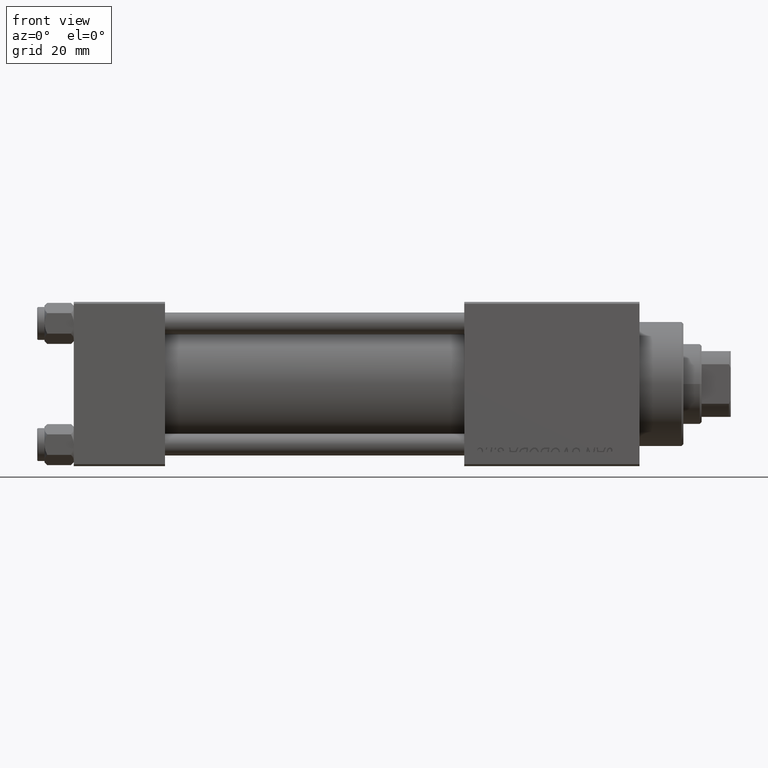
[diagram: clean part render]
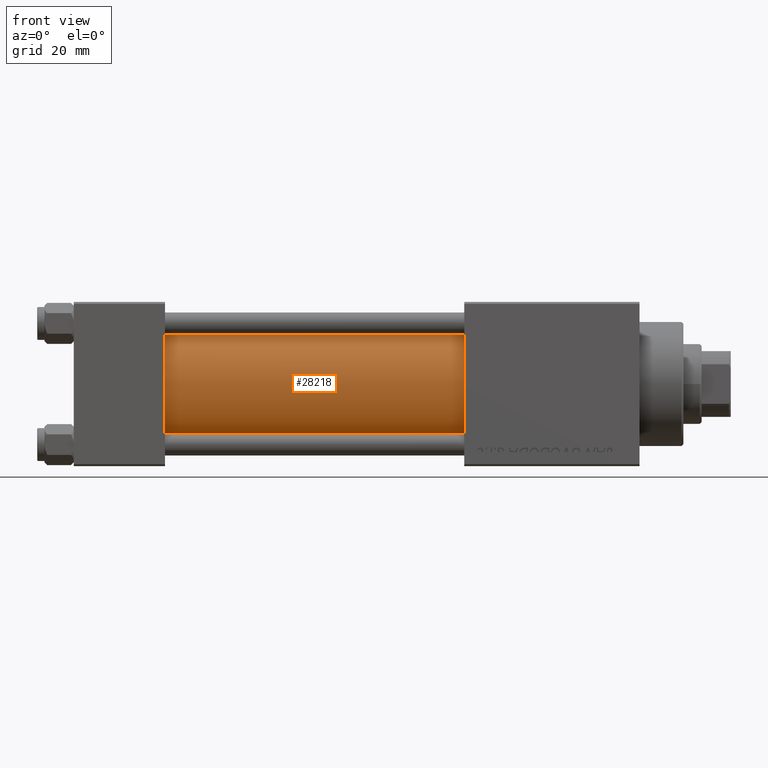
[diagram: same view with one face highlighted and labeled with its STEP entity id]
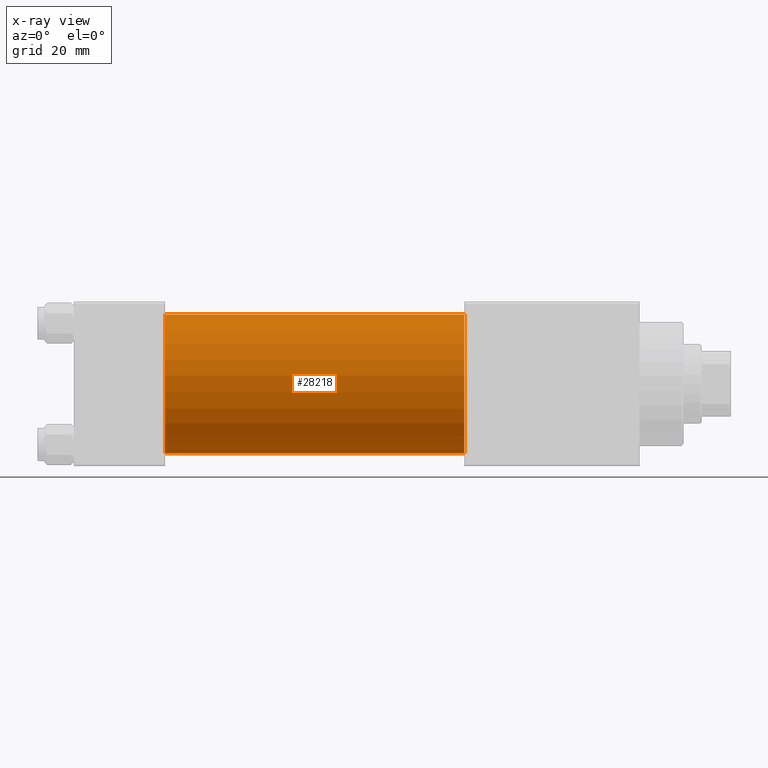
[diagram: x-ray of the same camera — body ghosted, the highlighted face saturated]
A machine part, front view. The second image highlights one B-rep face of the part: STEP entity #28218.
The next image is the same camera in x-ray: the body ghosted, the highlighted face saturated — about 0% of this face is hidden behind the body in this view.
In plain terms, the highlighted cylindrical surface (partial cylindrical patch) has radius 19 mm, axis along (-1, -0, -0).
Its self-contained STEP definition (entity closure, byte-faithful):
#2283 = DIRECTION ( 'NONE',  ( -1.000000000000000000, -0.000000000000000000, -0.000000000000000000 ) ) ;
#2782 = CARTESIAN_POINT ( 'NONE',  ( 24.99999999999999289, -2.752562955852396712E-16, -19.00000000000000000 ) ) ;
#2908 = CYLINDRICAL_SURFACE ( 'NONE', #4988, 19.00000000000000000 ) ;
#3744 = VERTEX_POINT ( 'NONE', #37486 ) ;
#4988 = AXIS2_PLACEMENT_3D ( 'NONE', #45785, #49088, #6472 ) ;
#5167 = DIRECTION ( 'NONE',  ( 0.000000000000000000, 0.000000000000000000, 1.000000000000000000 ) ) ;
#6472 = DIRECTION ( 'NONE',  ( 0.000000000000000000, 0.000000000000000000, 1.000000000000000000 ) ) ;
#6480 = EDGE_CURVE ( 'NONE', #7196, #46369, #33509, .T. ) ;
#7196 = VERTEX_POINT ( 'NONE', #39369 ) ;
#8418 = CIRCLE ( 'NONE', #44050, 19.00000000000000000 ) ;
#9655 = CARTESIAN_POINT ( 'NONE',  ( 107.0000000000000142, -2.752562955852396712E-16, -19.00000000000000000 ) ) ;
#18276 = DIRECTION ( 'NONE',  ( -1.000000000000000000, -0.000000000000000000, -0.000000000000000000 ) ) ;
#19602 = DIRECTION ( 'NONE',  ( 1.000000000000000000, 0.000000000000000000, 0.000000000000000000 ) ) ;
#19654 = AXIS2_PLACEMENT_3D ( 'NONE', #24217, #32557, #5167 ) ;
#24217 = CARTESIAN_POINT ( 'NONE',  ( 24.99999999999999289, -2.602085213965210642E-15, 0.000000000000000000 ) ) ;
#28218 = ADVANCED_FACE ( 'NONE', ( #29577 ), #2908, .T. ) ;
#29448 = CARTESIAN_POINT ( 'NONE',  ( 107.0000000000000142, -2.602085213965210642E-15, 19.00000000000000000 ) ) ;
#29577 = FACE_OUTER_BOUND ( 'NONE', #33884, .T. ) ;
#29996 = EDGE_CURVE ( 'NONE', #45978, #46369, #43148, .T. ) ;
#32557 = DIRECTION ( 'NONE',  ( 1.000000000000000000, -0.000000000000000000, 0.000000000000000000 ) ) ;
#33509 = LINE ( 'NONE', #9655, #47696 ) ;
#33884 = EDGE_LOOP ( 'NONE', ( #41487, #37635, #45968, #40166 ) ) ;
#37147 = EDGE_CURVE ( 'NONE', #3744, #7196, #8418, .T. ) ;
#37486 = CARTESIAN_POINT ( 'NONE',  ( 107.0000000000000142, -2.602085213965210642E-15, 19.00000000000000000 ) ) ;
#37635 = ORIENTED_EDGE ( 'NONE', *, *, #37147, .F. ) ;
#39133 = CARTESIAN_POINT ( 'NONE',  ( 107.0000000000000142, -2.602085213965210642E-15, 0.000000000000000000 ) ) ;
#39163 = CARTESIAN_POINT ( 'NONE',  ( 24.99999999999999289, -2.602085213965210642E-15, 19.00000000000000000 ) ) ;
#39369 = CARTESIAN_POINT ( 'NONE',  ( 107.0000000000000142, -2.752562955852396712E-16, -19.00000000000000000 ) ) ;
#40166 = ORIENTED_EDGE ( 'NONE', *, *, #29996, .T. ) ;
#41487 = ORIENTED_EDGE ( 'NONE', *, *, #6480, .F. ) ;
#42944 = DIRECTION ( 'NONE',  ( 0.000000000000000000, 0.000000000000000000, -1.000000000000000000 ) ) ;
#43148 = CIRCLE ( 'NONE', #19654, 19.00000000000000000 ) ;
#44050 = AXIS2_PLACEMENT_3D ( 'NONE', #39133, #19602, #42944 ) ;
#45785 = CARTESIAN_POINT ( 'NONE',  ( 107.0000000000000142, -2.602085213965210642E-15, 0.000000000000000000 ) ) ;
#45968 = ORIENTED_EDGE ( 'NONE', *, *, #48892, .T. ) ;
#45978 = VERTEX_POINT ( 'NONE', #39163 ) ;
#46369 = VERTEX_POINT ( 'NONE', #2782 ) ;
#47696 = VECTOR ( 'NONE', #2283, 1000.000000000000000 ) ;
#48707 = LINE ( 'NONE', #29448, #48992 ) ;
#48892 = EDGE_CURVE ( 'NONE', #3744, #45978, #48707, .T. ) ;
#48992 = VECTOR ( 'NONE', #18276, 1000.000000000000000 ) ;
#49088 = DIRECTION ( 'NONE',  ( -1.000000000000000000, -0.000000000000000000, -0.000000000000000000 ) ) ;